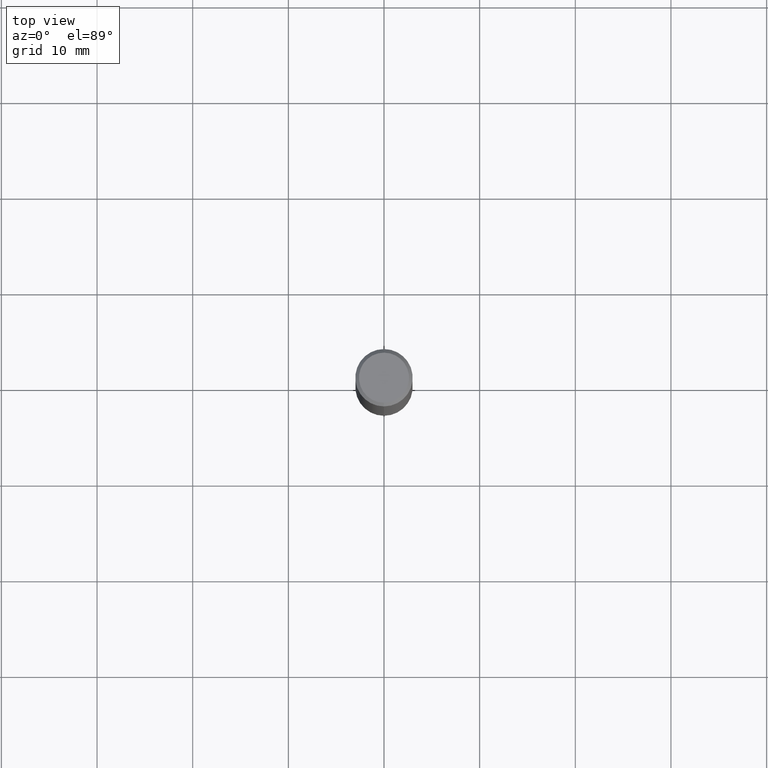
[diagram: clean part render]
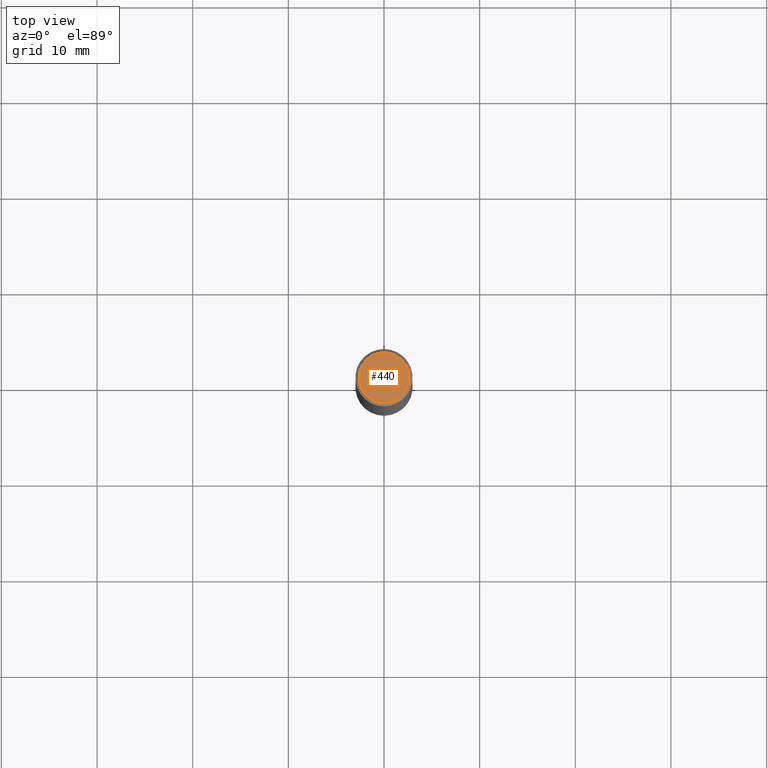
[diagram: same view with one face highlighted and labeled with its STEP entity id]
A machine part, top view. The second image highlights one B-rep face of the part: STEP entity #440.
In plain terms, the highlighted planar face has unit normal (-0, 0, 1).
Its self-contained STEP definition (entity closure, byte-faithful):
#14 = ORIENTED_EDGE ( 'NONE', *, *, #370, .F. ) ;
#19 = FACE_OUTER_BOUND ( 'NONE', #85, .T. ) ;
#55 = CARTESIAN_POINT ( 'NONE',  ( 7.199434520694515404E-16, 0.1030999999999996503, -3.600571582562927298E-16 ) ) ;
#84 = CIRCLE ( 'NONE', #264, 0.1030999999999996503 ) ;
#85 = EDGE_LOOP ( 'NONE', ( #306, #14 ) ) ;
#89 = CARTESIAN_POINT ( 'NONE',  ( 7.199434520694515404E-16, 0.1030999999999996503, -3.601413369023946017E-16 ) ) ;
#114 = AXIS2_PLACEMENT_3D ( 'NONE', #55, #134, #257 ) ;
#134 = DIRECTION ( 'NONE',  ( -2.444320031831448161E-29, 3.493126449101802848E-15, 1.000000000000000000 ) ) ;
#145 = CIRCLE ( 'NONE', #213, 0.1030999999999996503 ) ;
#178 = CARTESIAN_POINT ( 'NONE',  ( 0.000000000000000000, 0.000000000000000000, 0.000000000000000000 ) ) ;
#213 = AXIS2_PLACEMENT_3D ( 'NONE', #280, #394, #283 ) ;
#257 = DIRECTION ( 'NONE',  ( -6.982962677686265922E-15, -1.000000000000000000, 3.493126449101802848E-15 ) ) ;
#263 = EDGE_CURVE ( 'NONE', #350, #351, #84, .T. ) ;
#264 = AXIS2_PLACEMENT_3D ( 'NONE', #178, #482, #293 ) ;
#280 = CARTESIAN_POINT ( 'NONE',  ( 0.000000000000000000, 0.000000000000000000, 0.000000000000000000 ) ) ;
#283 = DIRECTION ( 'NONE',  ( 6.982962677686265922E-15, 1.000000000000000000, -3.493126449101802453E-15 ) ) ;
#293 = DIRECTION ( 'NONE',  ( 6.982962677686265922E-15, 1.000000000000000000, -3.493126449101802453E-15 ) ) ;
#306 = ORIENTED_EDGE ( 'NONE', *, *, #263, .F. ) ;
#350 = VERTEX_POINT ( 'NONE', #89 ) ;
#351 = VERTEX_POINT ( 'NONE', #430 ) ;
#370 = EDGE_CURVE ( 'NONE', #351, #350, #145, .T. ) ;
#394 = DIRECTION ( 'NONE',  ( 2.444320031831448722E-29, -3.493126449101802453E-15, -1.000000000000000000 ) ) ;
#430 = CARTESIAN_POINT ( 'NONE',  ( -7.587710785535285755E-16, -0.1030999999999996503, 3.601413369023946017E-16 ) ) ;
#440 = ADVANCED_FACE ( 'NONE', ( #19 ), #444, .T. ) ;
#444 = PLANE ( 'NONE',  #114 ) ;
#482 = DIRECTION ( 'NONE',  ( 2.444320031831448722E-29, -3.493126449101802453E-15, -1.000000000000000000 ) ) ;